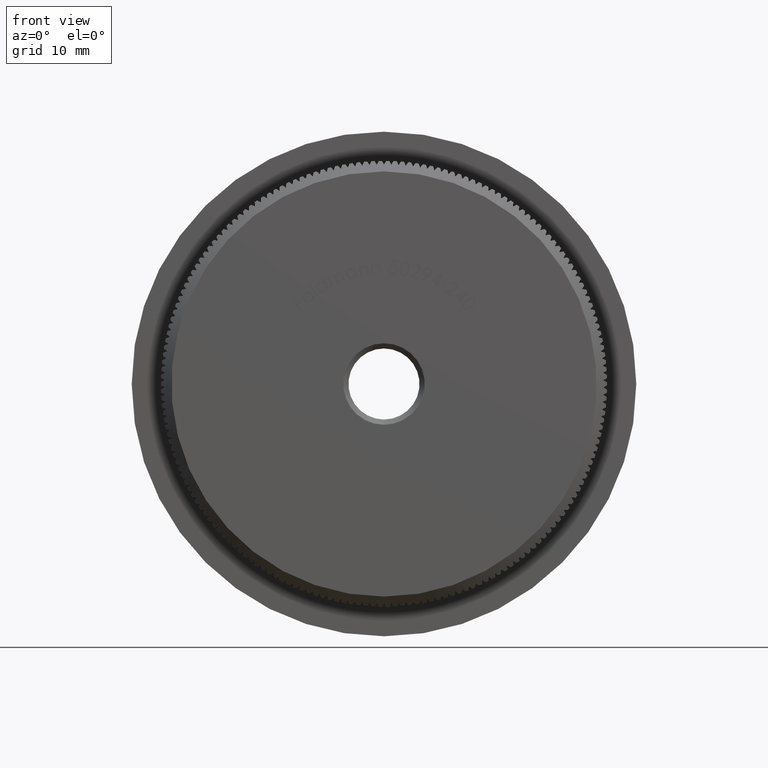
[diagram: clean part render]
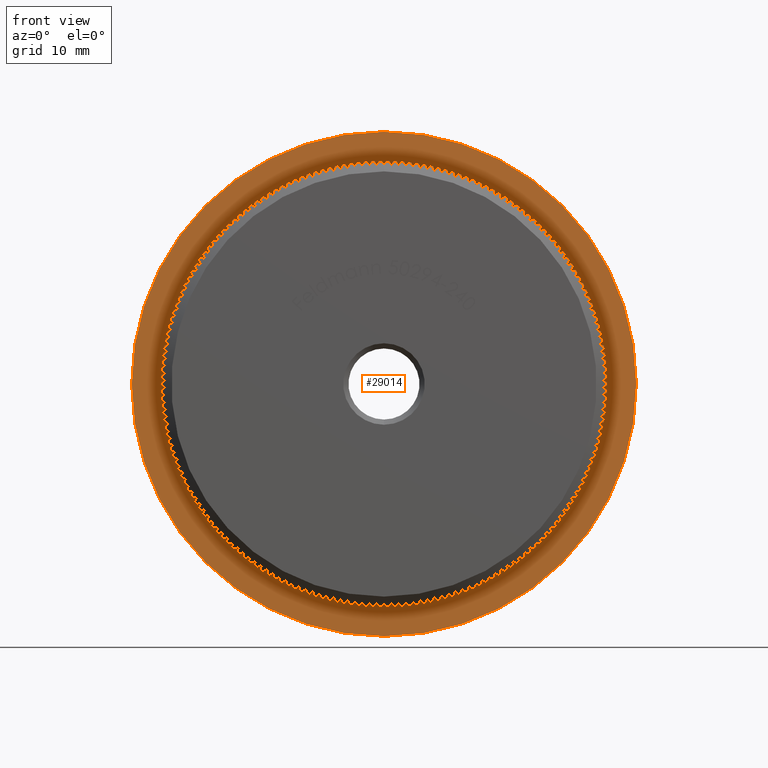
[diagram: same view with one face highlighted and labeled with its STEP entity id]
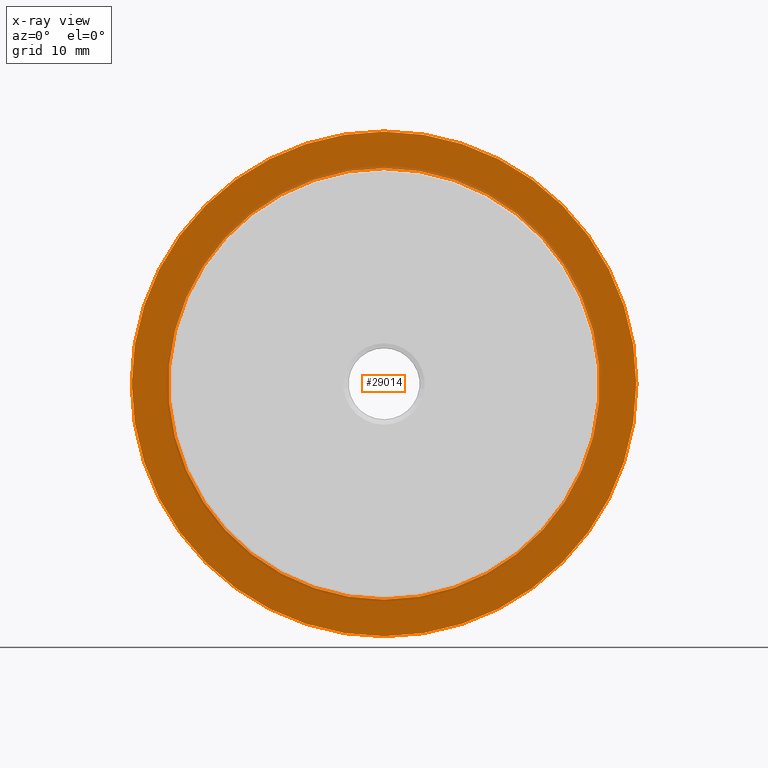
[diagram: x-ray of the same camera — body ghosted, the highlighted face saturated]
A machine part, front view. The second image highlights one B-rep face of the part: STEP entity #29014.
The next image is the same camera in x-ray: the body ghosted, the highlighted face saturated — about 6% of this face is hidden behind the body in this view.
In plain terms, the highlighted planar face has unit normal (0, -1, -0).
Its self-contained STEP definition (entity closure, byte-faithful):
#1480 = CARTESIAN_POINT ( 'NONE',  ( 0.0000000000000000000, 8.000000000000000000, -20.65000000000000200 ) ) ;
#1863 = EDGE_LOOP ( 'NONE', ( #13488, #6604 ) ) ;
#3530 = DIRECTION ( 'NONE',  ( 0.0000000000000000000, 0.0000000000000000000, -1.000000000000000000 ) ) ;
#4541 = AXIS2_PLACEMENT_3D ( 'NONE', #25609, #5546, #25818 ) ;
#5546 = DIRECTION ( 'NONE',  ( -0.0000000000000000000, -1.000000000000000000, -0.0000000000000000000 ) ) ;
#6040 = AXIS2_PLACEMENT_3D ( 'NONE', #16795, #26838, #29474 ) ;
#6604 = ORIENTED_EDGE ( 'NONE', *, *, #28151, .F. ) ;
#7708 = VERTEX_POINT ( 'NONE', #19696 ) ;
#8565 = DIRECTION ( 'NONE',  ( 0.0000000000000000000, 0.0000000000000000000, -1.000000000000000000 ) ) ;
#9029 = EDGE_LOOP ( 'NONE', ( #19536, #13947 ) ) ;
#10219 = AXIS2_PLACEMENT_3D ( 'NONE', #18678, #23762, #8565 ) ;
#10357 = CIRCLE ( 'NONE', #30027, 24.14999999999999900 ) ;
#11806 = VERTEX_POINT ( 'NONE', #1480 ) ;
#13488 = ORIENTED_EDGE ( 'NONE', *, *, #21455, .F. ) ;
#13947 = ORIENTED_EDGE ( 'NONE', *, *, #24803, .T. ) ;
#14469 = DIRECTION ( 'NONE',  ( 0.0000000000000000000, 0.0000000000000000000, -1.000000000000000000 ) ) ;
#15946 = CARTESIAN_POINT ( 'NONE',  ( 0.0000000000000000000, 8.000000000000000000, 0.0000000000000000000 ) ) ;
#16795 = CARTESIAN_POINT ( 'NONE',  ( 20.65000000000000200, 8.000000000000000000, 0.0000000000000000000 ) ) ;
#17153 = CARTESIAN_POINT ( 'NONE',  ( 0.0000000000000000000, 8.000000000000000000, 0.0000000000000000000 ) ) ;
#18508 = DIRECTION ( 'NONE',  ( -0.0000000000000000000, -1.000000000000000000, -0.0000000000000000000 ) ) ;
#18678 = CARTESIAN_POINT ( 'NONE',  ( 0.0000000000000000000, 8.000000000000000000, 0.0000000000000000000 ) ) ;
#18781 = FACE_BOUND ( 'NONE', #1863, .T. ) ;
#19230 = CIRCLE ( 'NONE', #4541, 20.65000000000000200 ) ;
#19536 = ORIENTED_EDGE ( 'NONE', *, *, #31595, .T. ) ;
#19696 = CARTESIAN_POINT ( 'NONE',  ( 2.571758278209441700E-015, 8.000000000000000000, 20.65000000000000200 ) ) ;
#20025 = CIRCLE ( 'NONE', #10219, 24.14999999999999900 ) ;
#21455 = EDGE_CURVE ( 'NONE', #11806, #7708, #26083, .T. ) ;
#21784 = VERTEX_POINT ( 'NONE', #23437 ) ;
#23437 = CARTESIAN_POINT ( 'NONE',  ( 0.0000000000000000000, 8.000000000000000000, -24.14999999999999900 ) ) ;
#23762 = DIRECTION ( 'NONE',  ( -0.0000000000000000000, -1.000000000000000000, -0.0000000000000000000 ) ) ;
#24295 = FACE_OUTER_BOUND ( 'NONE', #9029, .T. ) ;
#24319 = PLANE ( 'NONE',  #6040 ) ;
#24502 = CARTESIAN_POINT ( 'NONE',  ( 2.957522019940858300E-015, 8.000000000000000000, 24.14999999999999900 ) ) ;
#24562 = DIRECTION ( 'NONE',  ( -0.0000000000000000000, -1.000000000000000000, -0.0000000000000000000 ) ) ;
#24803 = EDGE_CURVE ( 'NONE', #26831, #21784, #20025, .T. ) ;
#25609 = CARTESIAN_POINT ( 'NONE',  ( 0.0000000000000000000, 8.000000000000000000, 0.0000000000000000000 ) ) ;
#25818 = DIRECTION ( 'NONE',  ( 0.0000000000000000000, 0.0000000000000000000, -1.000000000000000000 ) ) ;
#26083 = CIRCLE ( 'NONE', #29677, 20.65000000000000200 ) ;
#26831 = VERTEX_POINT ( 'NONE', #24502 ) ;
#26838 = DIRECTION ( 'NONE',  ( 0.0000000000000000000, -1.000000000000000000, -0.0000000000000000000 ) ) ;
#28151 = EDGE_CURVE ( 'NONE', #7708, #11806, #19230, .T. ) ;
#29014 = ADVANCED_FACE ( 'NONE', ( #24295, #18781 ), #24319, .T. ) ;
#29474 = DIRECTION ( 'NONE',  ( 0.0000000000000000000, 0.0000000000000000000, -1.000000000000000000 ) ) ;
#29677 = AXIS2_PLACEMENT_3D ( 'NONE', #17153, #24562, #14469 ) ;
#30027 = AXIS2_PLACEMENT_3D ( 'NONE', #15946, #18508, #3530 ) ;
#31595 = EDGE_CURVE ( 'NONE', #21784, #26831, #10357, .T. ) ;